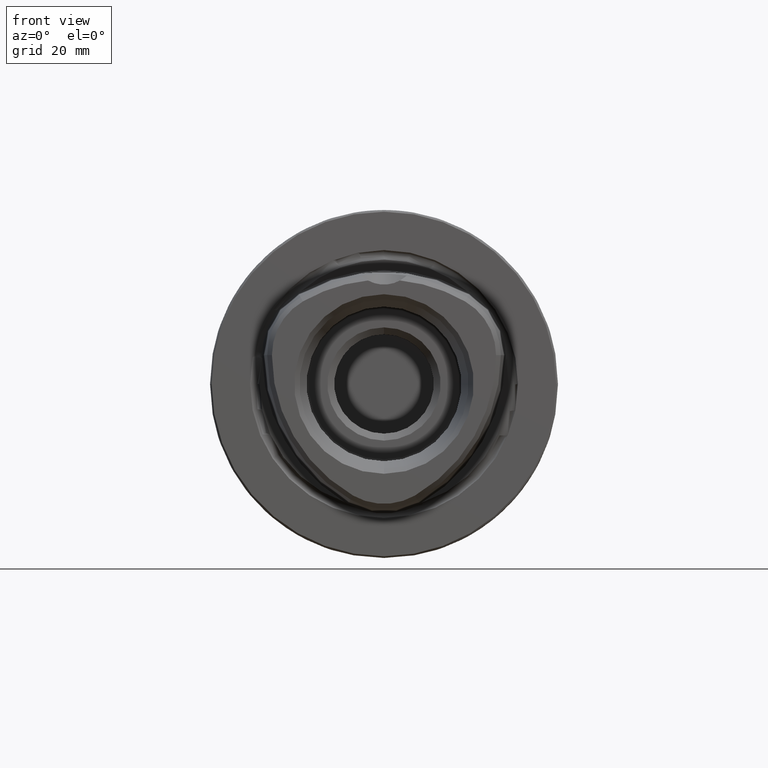
[diagram: clean part render]
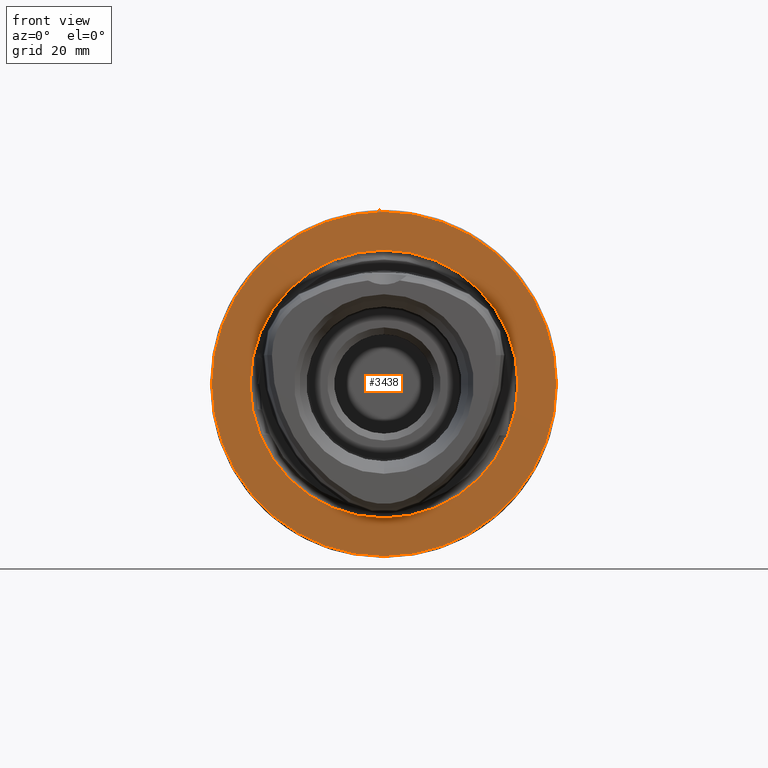
[diagram: same view with one face highlighted and labeled with its STEP entity id]
A machine part, front view. The second image highlights one B-rep face of the part: STEP entity #3438.
In plain terms, the highlighted planar face has unit normal (0, -1, 0).
Its self-contained STEP definition (entity closure, byte-faithful):
#1422=CARTESIAN_POINT('',(-1.936228954946E-13,4.010886343053E-7,
-3.508304757815E-13));
#1423=DIRECTION('',(0.E0,-1.E0,0.E0));
#1424=DIRECTION('',(1.E0,0.E0,1.092294200152E-14));
#1425=AXIS2_PLACEMENT_3D('',#1422,#1423,#1424);
#1427=CARTESIAN_POINT('',(2.540190280342E-13,4.010885525929E-7,
-5.062616992291E-14));
#1428=DIRECTION('',(0.E0,-1.E0,0.E0));
#1429=DIRECTION('',(-1.E0,0.E0,0.E0));
#1430=AXIS2_PLACEMENT_3D('',#1427,#1428,#1429);
#1432=CARTESIAN_POINT('',(0.E0,0.E0,0.E0));
#1433=DIRECTION('',(0.E0,-1.E0,0.E0));
#1434=DIRECTION('',(0.E0,0.E0,-1.E0));
#1435=AXIS2_PLACEMENT_3D('',#1432,#1433,#1434);
#1437=CARTESIAN_POINT('',(0.E0,0.E0,0.E0));
#1438=DIRECTION('',(0.E0,-1.E0,0.E0));
#1439=DIRECTION('',(0.E0,0.E0,1.E0));
#1440=AXIS2_PLACEMENT_3D('',#1437,#1438,#1439);
#1878=CARTESIAN_POINT('',(3.119999665778E1,4.010886343053E-7,
-1.003472184084E-14));
#1879=CARTESIAN_POINT('',(-3.119999665778E1,4.010886343053E-7,0.E0));
#1880=VERTEX_POINT('',#1878);
#1881=VERTEX_POINT('',#1879);
#1886=CARTESIAN_POINT('',(0.E0,0.E0,-2.425E1));
#1887=CARTESIAN_POINT('',(0.E0,0.E0,2.425E1));
#1888=VERTEX_POINT('',#1886);
#1889=VERTEX_POINT('',#1887);
#3424=CARTESIAN_POINT('',(0.E0,0.E0,0.E0));
#3425=DIRECTION('',(0.E0,-1.E0,0.E0));
#3426=DIRECTION('',(-1.E0,0.E0,0.E0));
#3427=AXIS2_PLACEMENT_3D('',#3424,#3425,#3426);
#3428=PLANE('',#3427);
#3429=ORIENTED_EDGE('',*,*,#3414,.F.);
#3431=ORIENTED_EDGE('',*,*,#3430,.F.);
#3432=EDGE_LOOP('',(#3429,#3431));
#3433=FACE_OUTER_BOUND('',#3432,.F.);
#3434=ORIENTED_EDGE('',*,*,#2359,.T.);
#3435=ORIENTED_EDGE('',*,*,#2224,.T.);
#3436=EDGE_LOOP('',(#3434,#3435));
#3437=FACE_BOUND('',#3436,.F.);
#3438=ADVANCED_FACE('',(#3433,#3437),#3428,.T.);
#1426=CIRCLE('',#1425,3.119999665778E1);
#1431=CIRCLE('',#1430,3.119999665778E1);
#1436=CIRCLE('',#1435,2.425E1);
#1441=CIRCLE('',#1440,2.425E1);
#2224=EDGE_CURVE('',#1889,#1888,#1441,.T.);
#2359=EDGE_CURVE('',#1888,#1889,#1436,.T.);
#3414=EDGE_CURVE('',#1880,#1881,#1426,.T.);
#3430=EDGE_CURVE('',#1881,#1880,#1431,.T.);